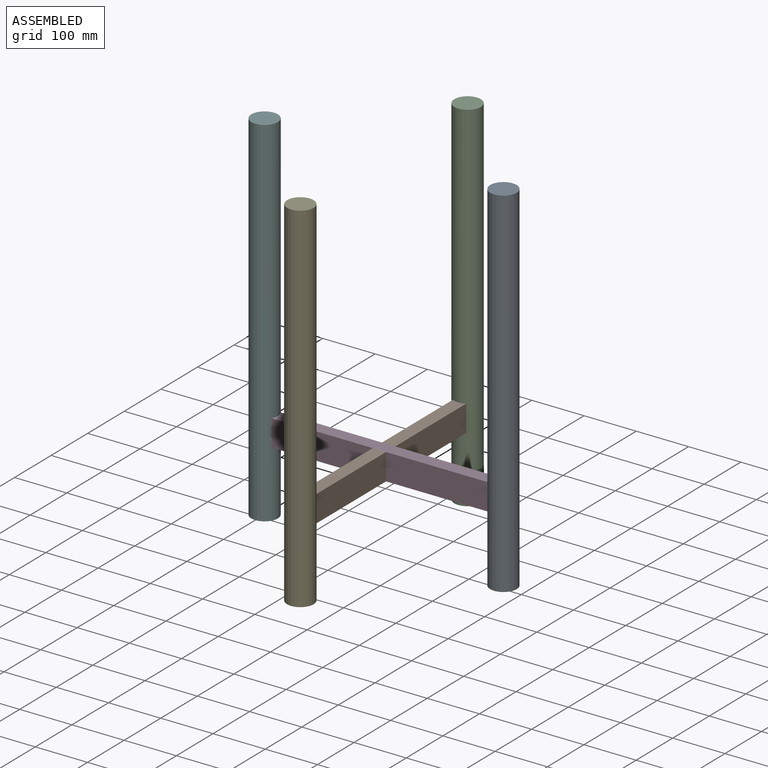
[diagram: assembled view]
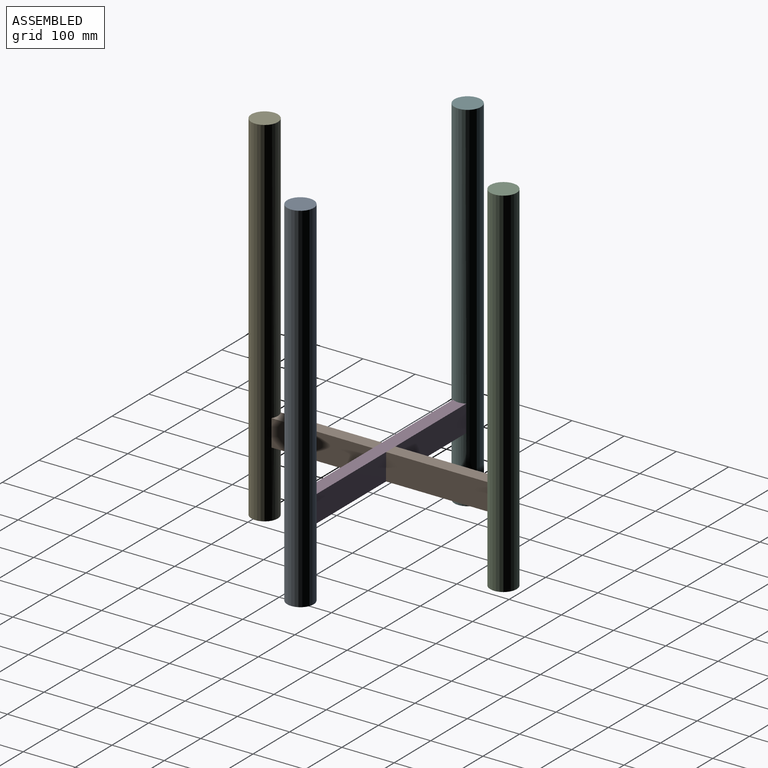
[diagram: assembled view, second angle]
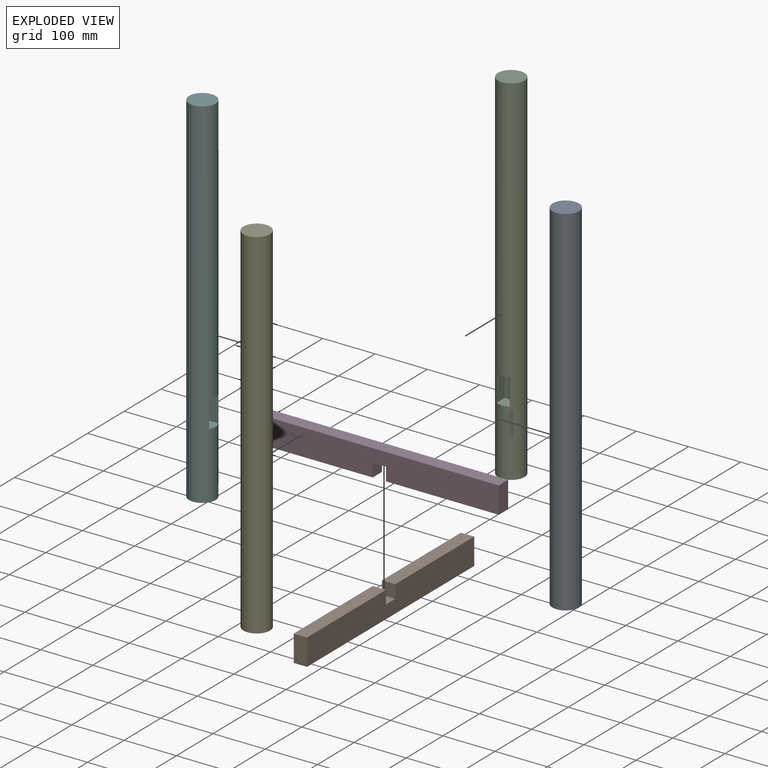
[diagram: exploded view]
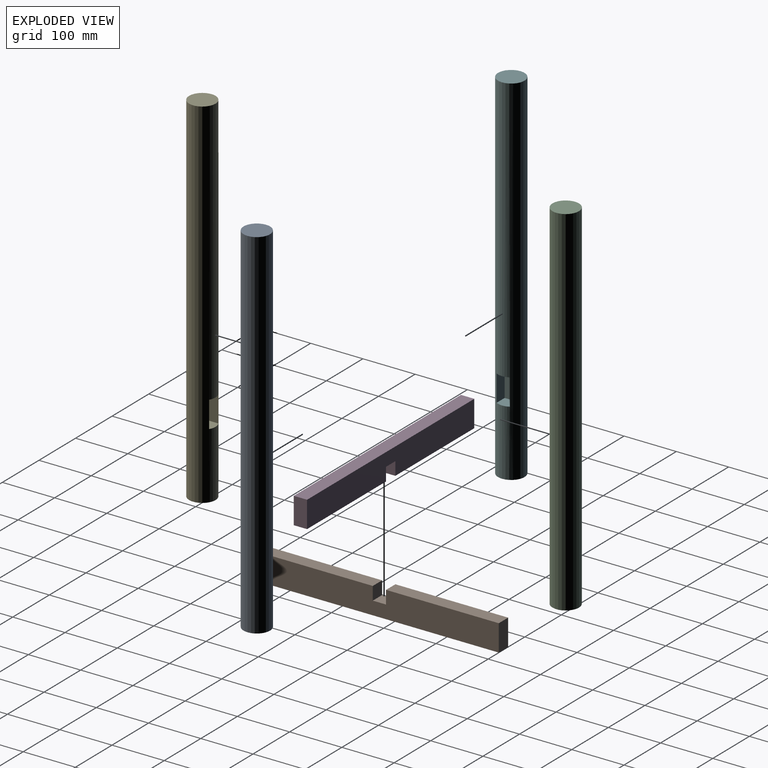
[diagram: exploded view, second angle]
ASSEMBLY  parts=6 mates=5
PART A: 8 faces, bbox 50.8x50.8x685.8 mm
  f0: cylinder r=25.4mm len=685.8mm, axis (0,0,-1), area 108097.6mm2, adj f1,f2,f3,f4,f5,f6
  f1: plane 50.8x50.8mm, normal (0,0,1), area 2026.8mm2, adj f0
  f2: plane 50.8x50.8mm, normal (0,0,-1), area 2026.8mm2, adj f0
  f3: plane 50.8x22mm, normal (0,-1,0), area 1117.4mm2, adj f0,f4,f6,f7
  f4: plane 25.4x25.4mm, normal (0,0,-1), area 617.2mm2, adj f0,f3,f5,f7
  f5: plane 50.8x22mm, normal (0,1,0), area 1117.4mm2, adj f0,f4,f6,f7
  f6: plane 25.4x25.4mm, normal (0,0,1), area 617.2mm2, adj f0,f3,f5,f7
  f7: plane 50.8x25.4mm, normal (1,0,0), area 1290.3mm2, adj f3,f4,f5,f6
PART B: 10 faces, bbox 25.4x457.2x50.8 mm
  f0: plane 215.98x25.4mm, normal (0,0,1), area 5486mm2, adj f1,f2,f5,f8
  f1: plane 457.2x50.8mm, normal (1,0,0), area 22580.6mm2, adj f0,f3,f4,f5,f6,f7,f8,f9
  f2: plane 457.2x50.8mm, normal (-1,0,0), area 22580.6mm2, adj f0,f3,f4,f5,f6,f7,f8,f9
  f3: plane 50.8x25.4mm, normal (0,1,0), area 1290.3mm2, adj f1,f2,f4,f6
  f4: plane 215.82x25.4mm, normal (0,0,1), area 5481.7mm2, adj f1,f2,f3,f7
  f5: plane 50.8x25.4mm, normal (0,-1,0), area 1290.3mm2, adj f0,f1,f2,f6
  f6: plane 457.2x25.4mm, normal (0,0,-1), area 11612.9mm2, adj f1,f2,f3,f5
  f7: plane 25.4x25.4mm, normal (0,-1,0), area 645.2mm2, adj f1,f2,f4,f9
  f8: plane 25.4x25.4mm, normal (0,1,0), area 645.2mm2, adj f0,f1,f2,f9
  f9: plane 25.4x25.4mm, normal (0,0,1), area 645.2mm2, adj f1,f2,f7,f8
PART C: same geometry as A
PART D: same geometry as B
PART E: same geometry as A
PART F: same geometry as A
PLACE A rot(axis=(0,0,1),180deg) t=(213.09,-10.13,303.27)mm
PLACE B t=(-28.29,-10.21,-1.81)mm fixed
PLACE C rot(axis=(0,0,-1),90deg) t=(-15.59,218.39,303.27)mm
PLACE D rot(axis=(0.71,-0.71,0),180deg) t=(-15.51,2.57,-1.81)mm
PLACE E rot(axis=(0,0,1),90deg) t=(-15.59,-238.81,303.27)mm
PLACE F t=(-244.11,-10.13,303.27)mm
MATE fastened D.f5 <-> A.f7  axis (1,0,0) through (213.09,-10.13,-1.81)mm
MATE fastened B.f5 <-> E.f7  axis (0,-1,0) through (-15.59,-238.81,-1.81)mm
MATE fastened B.f3 <-> C.f7  axis (0,1,0) through (-15.59,218.39,-1.81)mm
MATE fastened D.f3 <-> F.f7  axis (-1,0,0) through (-244.11,-10.13,-1.81)mm
MATE fastened B.f9 <-> D.f9  axis (0,0,1) through (-15.59,-10.13,-1.81)mm
